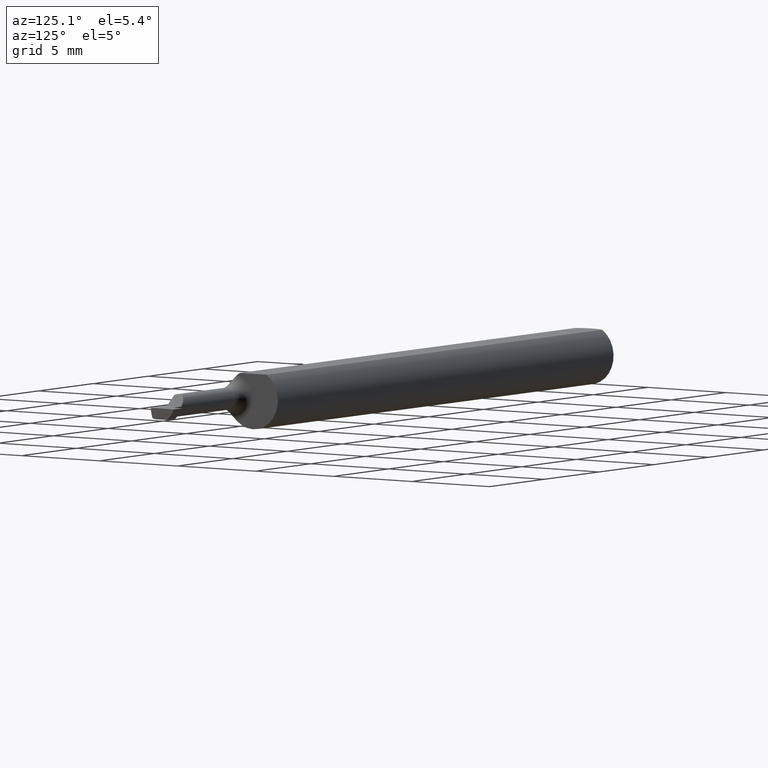
[diagram: clean part render]
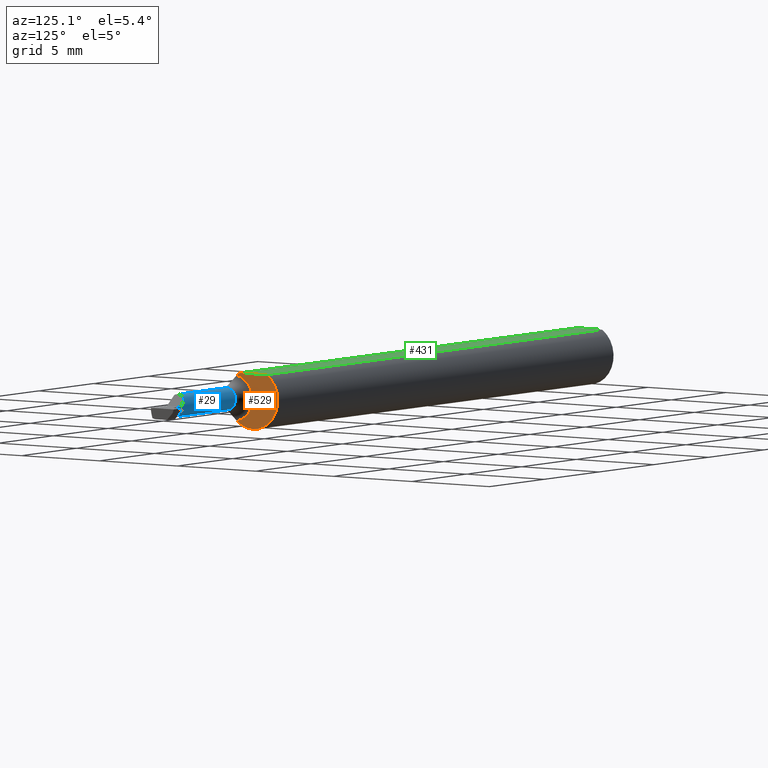
[diagram: same view with three faces highlighted in distinct colors, each labeled with its STEP entity id]
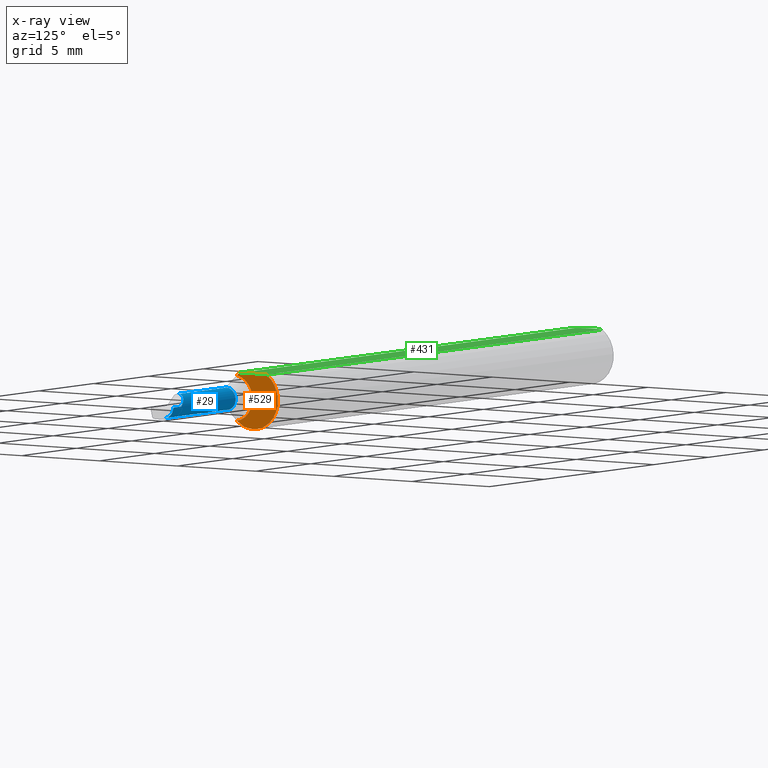
[diagram: x-ray of the same camera — body ghosted, the three highlighted faces saturated]
A machine part, auxiliary view with three faces highlighted in distinct colors.
The next image is the same camera in x-ray (body ghosted, the three faces saturated) — at least one of them is partly hidden behind the body in this view.
Their STEP definitions:

[orange] entity #529 — the highlighted planar face has unit normal (1, 0, 0).
#2 = CARTESIAN_POINT ( 'NONE',  ( 1.220000000000000195, 0.07349999999999999589, 0.000000000000000000 ) ) ;
#5 = FACE_OUTER_BOUND ( 'NONE', #340, .T. ) ;
#20 = VERTEX_POINT ( 'NONE', #645 ) ;
#41 = DIRECTION ( 'NONE',  ( 1.000000000000000000, 0.000000000000000000, 0.000000000000000000 ) ) ;
#70 = LINE ( 'NONE', #162, #239 ) ;
#72 = ORIENTED_EDGE ( 'NONE', *, *, #422, .T. ) ;
#101 = CARTESIAN_POINT ( 'NONE',  ( 1.220000000000000195, 0.000000000000000000, 0.000000000000000000 ) ) ;
#108 = DIRECTION ( 'NONE',  ( 1.000000000000000000, 0.000000000000000000, 0.000000000000000000 ) ) ;
#113 = AXIS2_PLACEMENT_3D ( 'NONE', #101, #320, #597 ) ;
#147 = CARTESIAN_POINT ( 'NONE',  ( 1.220000000000000195, -0.04950000000000000233, 0.000000000000000000 ) ) ;
#162 = CARTESIAN_POINT ( 'NONE',  ( 1.220000000000000195, -0.06250000000000001388, 0.05250000000000000500 ) ) ;
#177 = ORIENTED_EDGE ( 'NONE', *, *, #510, .T. ) ;
#198 = VERTEX_POINT ( 'NONE', #667 ) ;
#205 = DIRECTION ( 'NONE',  ( 0.000000000000000000, 0.000000000000000000, -1.000000000000000000 ) ) ;
#207 = CARTESIAN_POINT ( 'NONE',  ( 1.220000000000000195, 0.03391164991562636150, 0.05250000000000000500 ) ) ;
#215 = ORIENTED_EDGE ( 'NONE', *, *, #583, .F. ) ;
#219 = PLANE ( 'NONE',  #673 ) ;
#239 = VECTOR ( 'NONE', #545, 39.37007874015748143 ) ;
#256 = DIRECTION ( 'NONE',  ( 0.000000000000000000, 0.000000000000000000, 1.000000000000000000 ) ) ;
#319 = CIRCLE ( 'NONE', #113, 0.06250000000000000000 ) ;
#320 = DIRECTION ( 'NONE',  ( 1.000000000000000000, 0.000000000000000000, 0.000000000000000000 ) ) ;
#328 = DIRECTION ( 'NONE',  ( 0.000000000000000000, 0.000000000000000000, -1.000000000000000000 ) ) ;
#340 = EDGE_LOOP ( 'NONE', ( #177, #215, #72, #481 ) ) ;
#372 = VERTEX_POINT ( 'NONE', #630 ) ;
#385 = CIRCLE ( 'NONE', #684, 0.06250000000000000000 ) ;
#411 = DIRECTION ( 'NONE',  ( -1.000000000000000000, -0.000000000000000000, -0.000000000000000000 ) ) ;
#422 = EDGE_CURVE ( 'NONE', #20, #372, #385, .T. ) ;
#453 = EDGE_CURVE ( 'NONE', #372, #198, #640, .T. ) ;
#479 = VERTEX_POINT ( 'NONE', #207 ) ;
#481 = ORIENTED_EDGE ( 'NONE', *, *, #453, .T. ) ;
#510 = EDGE_CURVE ( 'NONE', #198, #479, #319, .T. ) ;
#524 = CARTESIAN_POINT ( 'NONE',  ( 1.220000000000000195, 0.000000000000000000, 0.000000000000000000 ) ) ;
#529 = ADVANCED_FACE ( 'NONE', ( #5 ), #219, .T. ) ;
#545 = DIRECTION ( 'NONE',  ( -0.000000000000000000, 1.000000000000000000, 0.000000000000000000 ) ) ;
#555 = AXIS2_PLACEMENT_3D ( 'NONE', #147, #411, #256 ) ;
#583 = EDGE_CURVE ( 'NONE', #20, #479, #70, .T. ) ;
#597 = DIRECTION ( 'NONE',  ( 0.000000000000000000, 0.000000000000000000, -1.000000000000000000 ) ) ;
#630 = CARTESIAN_POINT ( 'NONE',  ( 1.220000000000000195, -0.04093434343434342731, 0.04722954083620995586 ) ) ;
#640 = CIRCLE ( 'NONE', #555, 0.04800000000000000100 ) ;
#645 = CARTESIAN_POINT ( 'NONE',  ( 1.220000000000000195, -0.03391164991562636150, 0.05250000000000000500 ) ) ;
#667 = CARTESIAN_POINT ( 'NONE',  ( 1.220000000000000195, -0.04093434343434342731, -0.04722954083620995586 ) ) ;
#673 = AXIS2_PLACEMENT_3D ( 'NONE', #2, #108, #328 ) ;
#684 = AXIS2_PLACEMENT_3D ( 'NONE', #524, #41, #205 ) ;

[blue] entity #29 — the highlighted cylindrical surface (edge-blend (fillet) strip) has radius 0.5842 mm, axis along (-1, -0, -0).
#23 = ORIENTED_EDGE ( 'NONE', *, *, #315, .F. ) ;
#24 = AXIS2_PLACEMENT_3D ( 'NONE', #90, #157, #418 ) ;
#29 = ADVANCED_FACE ( 'NONE', ( #703 ), #214, .T. ) ;
#35 = CARTESIAN_POINT ( 'NONE',  ( 1.469272891122366254, -0.02649999999999999925, -0.01347308806541881558 ) ) ;
#39 = CARTESIAN_POINT ( 'NONE',  ( 1.417000000000000259, -0.03602691193458118502, 0.02299999999999999961 ) ) ;
#42 = CARTESIAN_POINT ( 'NONE',  ( 1.220000000000000195, -0.04950000000000000233, 0.02299999999999999961 ) ) ;
#45 = CARTESIAN_POINT ( 'NONE',  ( 1.220000000000000195, -0.04950000000000000233, 0.000000000000000000 ) ) ;
#52 = VECTOR ( 'NONE', #292, 39.37007874015748143 ) ;
#90 = CARTESIAN_POINT ( 'NONE',  ( 1.244999999999999885, -0.04950000000000000233, 0.000000000000000000 ) ) ;
#93 = EDGE_CURVE ( 'NONE', #296, #679, #660, .T. ) ;
#97 = CARTESIAN_POINT ( 'NONE',  ( 1.468802687828234754, -0.02650000000000001660, 1.942005867998327689E-18 ) ) ;
#104 = ORIENTED_EDGE ( 'NONE', *, *, #563, .T. ) ;
#110 = EDGE_CURVE ( 'NONE', #296, #238, #526, .T. ) ;
#133 = CARTESIAN_POINT ( 'NONE',  ( 1.469604396811383440, -0.04950000000000000233, -0.02299999999999999961 ) ) ;
#157 = DIRECTION ( 'NONE',  ( -1.000000000000000000, -0.000000000000000000, -0.000000000000000000 ) ) ;
#182 = EDGE_CURVE ( 'NONE', #679, #401, #488, .T. ) ;
#192 = CARTESIAN_POINT ( 'NONE',  ( 1.440000000000000169, -0.02650000000000000966, 7.469896857675718968E-18 ) ) ;
#201 = CARTESIAN_POINT ( 'NONE',  ( 1.440000000000000169, -0.02650000000000000966, 7.469896857675718968E-18 ) ) ;
#214 = CYLINDRICAL_SURFACE ( 'NONE', #224, 0.02299999999999999961 ) ;
#224 = AXIS2_PLACEMENT_3D ( 'NONE', #45, #582, #697 ) ;
#230 = CARTESIAN_POINT ( 'NONE',  ( 1.220000000000000195, -0.02650000000000000272, 3.485951866915341887E-17 ) ) ;
#238 = VERTEX_POINT ( 'NONE', #662 ) ;
#253 = CARTESIAN_POINT ( 'NONE',  ( 1.468802687828234754, -0.02650000000000001660, 1.942005867998327689E-18 ) ) ;
#254 = VERTEX_POINT ( 'NONE', #133 ) ;
#270 = VERTEX_POINT ( 'NONE', #357 ) ;
#275 = DIRECTION ( 'NONE',  ( -1.000000000000000000, -0.000000000000000000, -0.000000000000000000 ) ) ;
#285 = LINE ( 'NONE', #551, #449 ) ;
#292 = DIRECTION ( 'NONE',  ( -1.000000000000000000, -0.000000000000000000, -0.000000000000000000 ) ) ;
#296 = VERTEX_POINT ( 'NONE', #688 ) ;
#297 = VECTOR ( 'NONE', #542, 39.37007874015748143 ) ;
#300 = CIRCLE ( 'NONE', #24, 0.02299999999999999961 ) ;
#315 = EDGE_CURVE ( 'NONE', #254, #401, #360, .T. ) ;
#357 = CARTESIAN_POINT ( 'NONE',  ( 1.244999999999999885, -0.04949999999999999539, -0.02299999999999999961 ) ) ;
#360 =( BOUNDED_CURVE ( )  B_SPLINE_CURVE ( 3, ( #519, #505, #35, #253 ),
 .UNSPECIFIED., .F., .T. ) 
 B_SPLINE_CURVE_WITH_KNOTS ( ( 4, 4 ),
 ( 3.140373936913448016, 4.711170263708344130 ),
 .UNSPECIFIED. ) 
 CURVE ( )  GEOMETRIC_REPRESENTATION_ITEM ( )  RATIONAL_B_SPLINE_CURVE ( ( 1.000000000000000000, 0.8047378541243650485, 0.8047378541243650485, 1.000000000000000000 ) ) 
 REPRESENTATION_ITEM ( '' )  );
#401 = VERTEX_POINT ( 'NONE', #97 ) ;
#403 = EDGE_CURVE ( 'NONE', #238, #270, #300, .T. ) ;
#413 = ORIENTED_EDGE ( 'NONE', *, *, #182, .T. ) ;
#418 = DIRECTION ( 'NONE',  ( 0.000000000000000000, 0.000000000000000000, 1.000000000000000000 ) ) ;
#419 = ORIENTED_EDGE ( 'NONE', *, *, #93, .T. ) ;
#449 = VECTOR ( 'NONE', #275, 39.37007874015748143 ) ;
#488 = LINE ( 'NONE', #230, #297 ) ;
#505 = CARTESIAN_POINT ( 'NONE',  ( 1.469604969856262988, -0.03602691193458118502, -0.02299999999999999614 ) ) ;
#519 = CARTESIAN_POINT ( 'NONE',  ( 1.469604396811383440, -0.04950000000000000233, -0.02299999999999999961 ) ) ;
#526 = LINE ( 'NONE', #42, #52 ) ;
#542 = DIRECTION ( 'NONE',  ( 1.000000000000000000, 0.000000000000000000, 0.000000000000000000 ) ) ;
#551 = CARTESIAN_POINT ( 'NONE',  ( 1.220000000000000195, -0.04950000000000000233, -0.02299999999999999961 ) ) ;
#563 = EDGE_CURVE ( 'NONE', #254, #270, #285, .T. ) ;
#582 = DIRECTION ( 'NONE',  ( -1.000000000000000000, -0.000000000000000000, -0.000000000000000000 ) ) ;
#618 = ORIENTED_EDGE ( 'NONE', *, *, #403, .F. ) ;
#637 = EDGE_LOOP ( 'NONE', ( #23, #104, #618, #669, #419, #413 ) ) ;
#656 = CARTESIAN_POINT ( 'NONE',  ( 1.417000000000000259, -0.04950000000000000233, 0.02299999999999999961 ) ) ;
#660 =( BOUNDED_CURVE ( )  B_SPLINE_CURVE ( 3, ( #656, #39, #694, #201 ),
 .UNSPECIFIED., .F., .T. ) 
 B_SPLINE_CURVE_WITH_KNOTS ( ( 4, 4 ),
 ( 0.000000000000000000, 1.570796326794896558 ),
 .UNSPECIFIED. ) 
 CURVE ( )  GEOMETRIC_REPRESENTATION_ITEM ( )  RATIONAL_B_SPLINE_CURVE ( ( 1.000000000000000000, 0.8047378541243649375, 0.8047378541243649375, 1.000000000000000000 ) ) 
 REPRESENTATION_ITEM ( '' )  );
#662 = CARTESIAN_POINT ( 'NONE',  ( 1.244999999999999885, -0.04950000000000000233, 0.02299999999999999961 ) ) ;
#669 = ORIENTED_EDGE ( 'NONE', *, *, #110, .F. ) ;
#679 = VERTEX_POINT ( 'NONE', #192 ) ;
#688 = CARTESIAN_POINT ( 'NONE',  ( 1.417000000000000259, -0.04950000000000000233, 0.02299999999999999961 ) ) ;
#694 = CARTESIAN_POINT ( 'NONE',  ( 1.426526911934581365, -0.02649999999999999925, 0.01347308806541881732 ) ) ;
#697 = DIRECTION ( 'NONE',  ( 0.000000000000000000, 0.000000000000000000, 1.000000000000000000 ) ) ;
#703 = FACE_OUTER_BOUND ( 'NONE', #637, .T. ) ;

[green] entity #431 — the highlighted planar face has unit normal (0, -0, 1).
#6 = EDGE_CURVE ( 'NONE', #302, #68, #17, .T. ) ;
#14 = CARTESIAN_POINT ( 'NONE',  ( 0.01499999999999999944, -0.03391164991562636150, 0.05249999999999998418 ) ) ;
#17 = B_SPLINE_CURVE_WITH_KNOTS ( 'NONE', 3,
 ( #103, #485, #470, #208, #318, #148 ),
 .UNSPECIFIED., .F., .F.,
 ( 4, 2, 4 ),
 ( 0.0009797930073890425730, 0.001428868798926340253, 0.001877944590463637717 ),
 .UNSPECIFIED. ) ;
#20 = VERTEX_POINT ( 'NONE', #645 ) ;
#62 = CARTESIAN_POINT ( 'NONE',  ( 0.009676924495017957123, -0.02328413057436891712, 0.05250000000000001193 ) ) ;
#68 = VERTEX_POINT ( 'NONE', #649 ) ;
#70 = LINE ( 'NONE', #162, #239 ) ;
#103 = CARTESIAN_POINT ( 'NONE',  ( 0.01499999999999999771, 0.03391164991562633374, 0.05250000000000000500 ) ) ;
#109 = CARTESIAN_POINT ( 'NONE',  ( 0.01216049014016022493, -0.02867836381244416935, 0.05250000000000000500 ) ) ;
#111 = LINE ( 'NONE', #222, #511 ) ;
#148 = CARTESIAN_POINT ( 'NONE',  ( 0.004999999999989314207, 8.235553591830799656E-16, 0.05250000000000000500 ) ) ;
#159 = EDGE_LOOP ( 'NONE', ( #398, #362, #557, #689, #573 ) ) ;
#162 = CARTESIAN_POINT ( 'NONE',  ( 1.220000000000000195, -0.06250000000000001388, 0.05250000000000000500 ) ) ;
#170 = EDGE_CURVE ( 'NONE', #68, #672, #355, .T. ) ;
#197 = DIRECTION ( 'NONE',  ( 1.000000000000000000, 0.000000000000000000, -0.000000000000000000 ) ) ;
#207 = CARTESIAN_POINT ( 'NONE',  ( 1.220000000000000195, 0.03391164991562636150, 0.05250000000000000500 ) ) ;
#208 = CARTESIAN_POINT ( 'NONE',  ( 0.006063917085846147297, 0.01190810954070469288, 0.05250000000000001887 ) ) ;
#212 = CARTESIAN_POINT ( 'NONE',  ( 1.500000000000000222, -0.06250000000000001388, 0.05250000000000000500 ) ) ;
#216 = CARTESIAN_POINT ( 'NONE',  ( 0.01499999999999999944, -0.03391164991562636150, 0.05249999999999998418 ) ) ;
#222 = CARTESIAN_POINT ( 'NONE',  ( 0.000000000000000000, 0.03391164991562636150, 0.05249999999999998418 ) ) ;
#239 = VECTOR ( 'NONE', #545, 39.37007874015748143 ) ;
#269 = DIRECTION ( 'NONE',  ( 0.000000000000000000, -0.000000000000000000, 1.000000000000000000 ) ) ;
#302 = VERTEX_POINT ( 'NONE', #307 ) ;
#307 = CARTESIAN_POINT ( 'NONE',  ( 0.01499999999999999771, 0.03391164991562633374, 0.05250000000000000500 ) ) ;
#318 = CARTESIAN_POINT ( 'NONE',  ( 0.004999999999999040802, 0.005952453510029875015, 0.05249999999999999806 ) ) ;
#336 = DIRECTION ( 'NONE',  ( -1.000000000000000000, -0.000000000000000000, -0.000000000000000000 ) ) ;
#352 = VECTOR ( 'NONE', #441, 39.37007874015748143 ) ;
#355 = B_SPLINE_CURVE_WITH_KNOTS ( 'NONE', 3,
 ( #548, #601, #440, #62, #109, #14 ),
 .UNSPECIFIED., .F., .F.,
 ( 4, 2, 4 ),
 ( 0.001877944590463637717, 0.002327931134338583757, 0.002777917678213529581 ),
 .UNSPECIFIED. ) ;
#362 = ORIENTED_EDGE ( 'NONE', *, *, #583, .T. ) ;
#384 = LINE ( 'NONE', #655, #352 ) ;
#398 = ORIENTED_EDGE ( 'NONE', *, *, #638, .T. ) ;
#431 = ADVANCED_FACE ( 'NONE', ( #483 ), #635, .T. ) ;
#440 = CARTESIAN_POINT ( 'NONE',  ( 0.006056885874551373727, -0.01188654981375985957, 0.05250000000000001193 ) ) ;
#441 = DIRECTION ( 'NONE',  ( 1.000000000000000000, 0.000000000000000000, 0.000000000000000000 ) ) ;
#470 = CARTESIAN_POINT ( 'NONE',  ( 0.009668628632509970039, 0.02325858892916567860, 0.05250000000000001193 ) ) ;
#479 = VERTEX_POINT ( 'NONE', #207 ) ;
#483 = FACE_OUTER_BOUND ( 'NONE', #159, .T. ) ;
#485 = CARTESIAN_POINT ( 'NONE',  ( 0.01218419045468773464, 0.02872204407162096823, 0.05250000000000001193 ) ) ;
#511 = VECTOR ( 'NONE', #336, 39.37007874015748143 ) ;
#545 = DIRECTION ( 'NONE',  ( -0.000000000000000000, 1.000000000000000000, 0.000000000000000000 ) ) ;
#548 = CARTESIAN_POINT ( 'NONE',  ( 0.004999999999989314207, 8.235553591830799656E-16, 0.05250000000000000500 ) ) ;
#557 = ORIENTED_EDGE ( 'NONE', *, *, #562, .T. ) ;
#562 = EDGE_CURVE ( 'NONE', #479, #302, #111, .T. ) ;
#573 = ORIENTED_EDGE ( 'NONE', *, *, #170, .T. ) ;
#583 = EDGE_CURVE ( 'NONE', #20, #479, #70, .T. ) ;
#601 = CARTESIAN_POINT ( 'NONE',  ( 0.004999999999998634009, -0.005964525438754507587, 0.05250000000000000500 ) ) ;
#635 = PLANE ( 'NONE',  #653 ) ;
#638 = EDGE_CURVE ( 'NONE', #672, #20, #384, .T. ) ;
#645 = CARTESIAN_POINT ( 'NONE',  ( 1.220000000000000195, -0.03391164991562636150, 0.05250000000000000500 ) ) ;
#649 = CARTESIAN_POINT ( 'NONE',  ( 0.004999999999989314207, 8.235553591830799656E-16, 0.05250000000000000500 ) ) ;
#653 = AXIS2_PLACEMENT_3D ( 'NONE', #212, #269, #197 ) ;
#655 = CARTESIAN_POINT ( 'NONE',  ( 0.000000000000000000, -0.03391164991562636150, 0.05249999999999998418 ) ) ;
#672 = VERTEX_POINT ( 'NONE', #216 ) ;
#689 = ORIENTED_EDGE ( 'NONE', *, *, #6, .T. ) ;